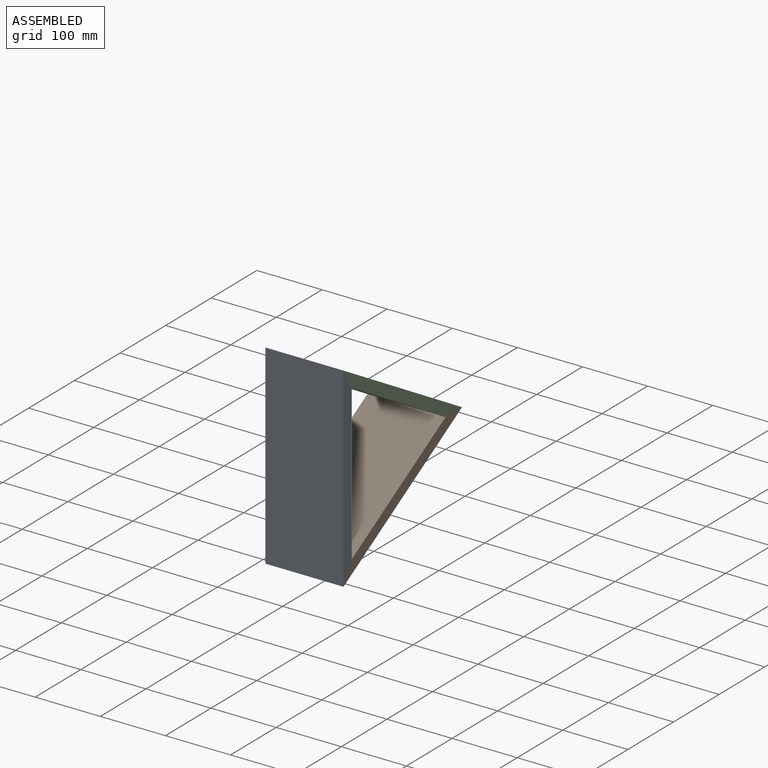
[diagram: assembled view]
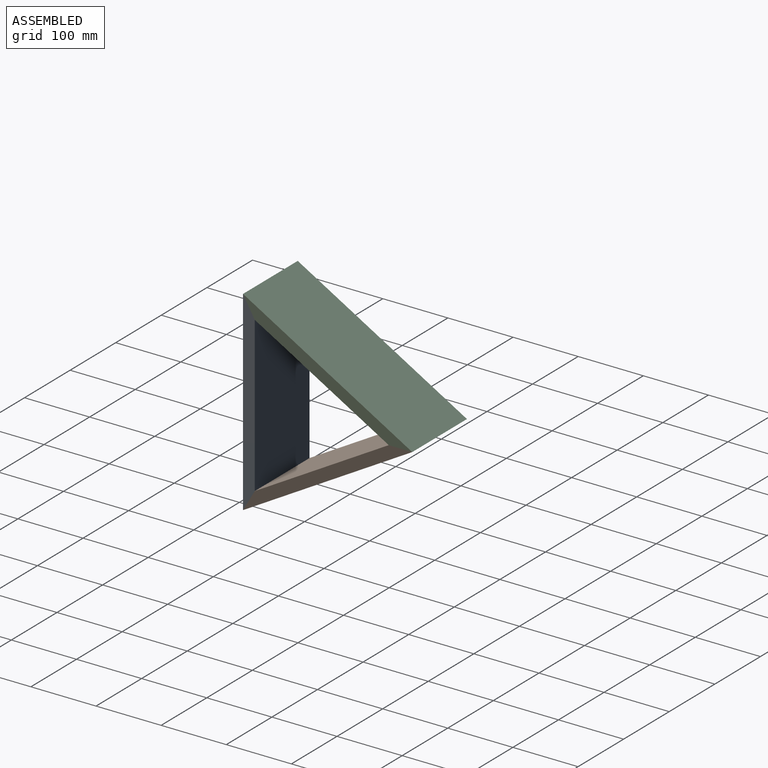
[diagram: assembled view, second angle]
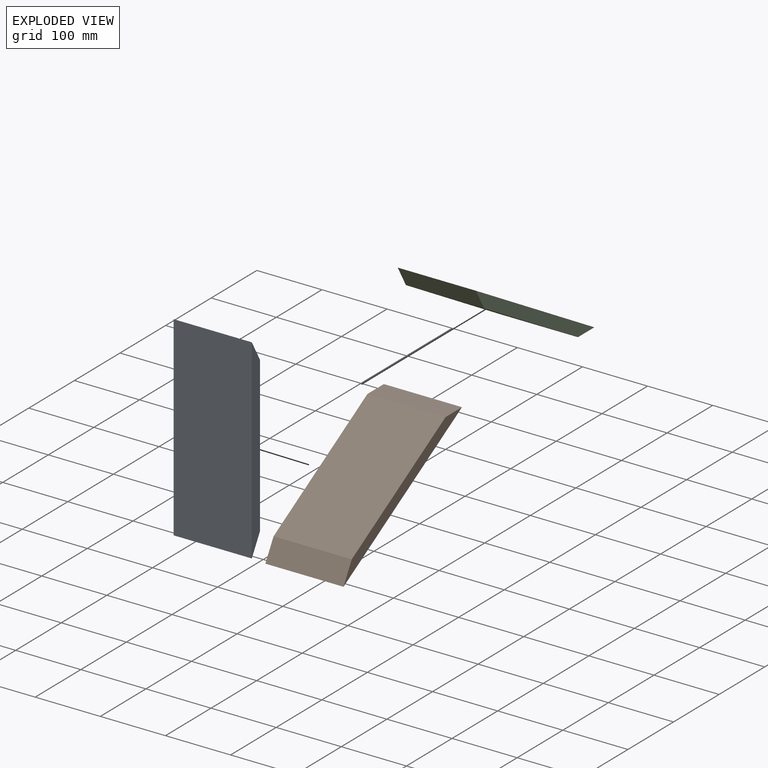
[diagram: exploded view]
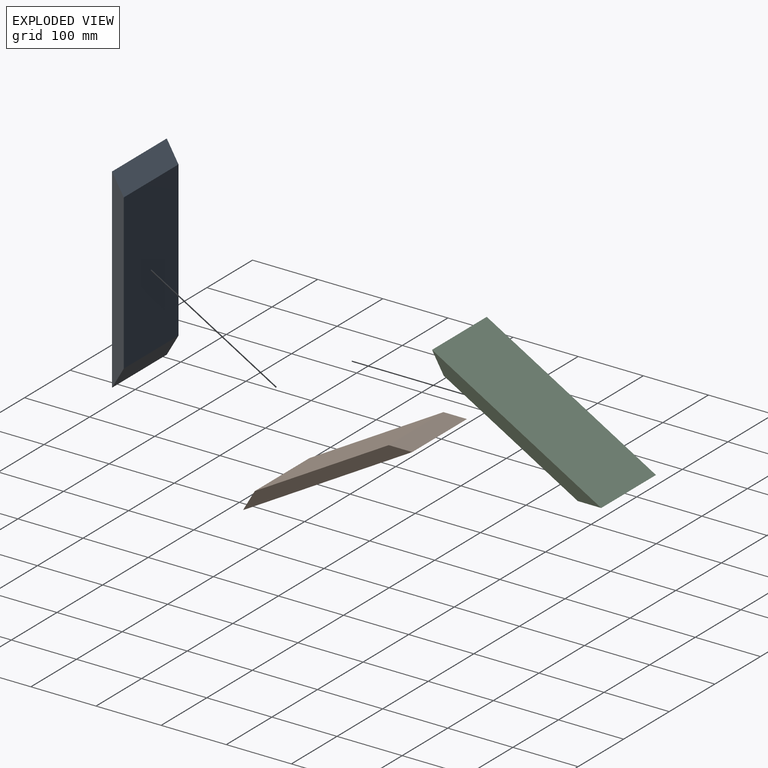
[diagram: exploded view, second angle]
ASSEMBLY  parts=3 mates=2
PART A: 6 faces, bbox 120x18x300 mm
  f0: plane 300x18mm, normal (1,0,0), area 4838.8mm2, adj f2,f3,f4,f5
  f1: plane 300x18mm, normal (-1,0,0), area 4838.8mm2, adj f2,f3,f4,f5
  f2: plane 237.65x120mm, normal (0,1,0), area 28517.5mm2, adj f0,f1,f4,f5
  f3: plane 300x120mm, normal (0,-1,0), area 36000mm2, adj f0,f1,f4,f5
  f4: plane 120x31.18mm, normal (0,0.87,0.5), area 4320mm2, adj f0,f1,f2,f3
  f5: plane 120x31.18mm, normal (0,0.87,-0.5), area 4320mm2, adj f0,f1,f2,f3
PART B: same geometry as A
PART C: same geometry as A
PLACE A t=(0,-43.36,-252.57)mm fixed
PLACE B rot(axis=(1,0,0),120deg) t=(0,202.95,-94.77)mm
PLACE C rot(axis=(-1,0,0),120deg) t=(0,-56.86,39.64)mm
MATE fastened C.f5 <-> A.f4  axis (0,-0.87,-0.5) through (0,-43.36,31.85)mm
MATE fastened A.f5 <-> B.f4  axis (0,0.87,-0.5) through (0,-43.36,-236.98)mm
